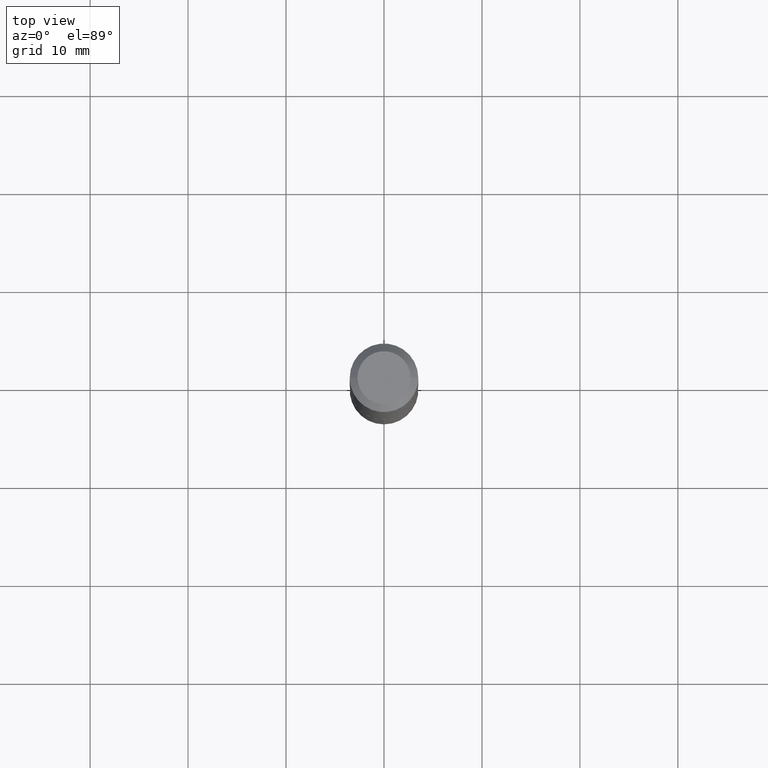
[diagram: clean part render]
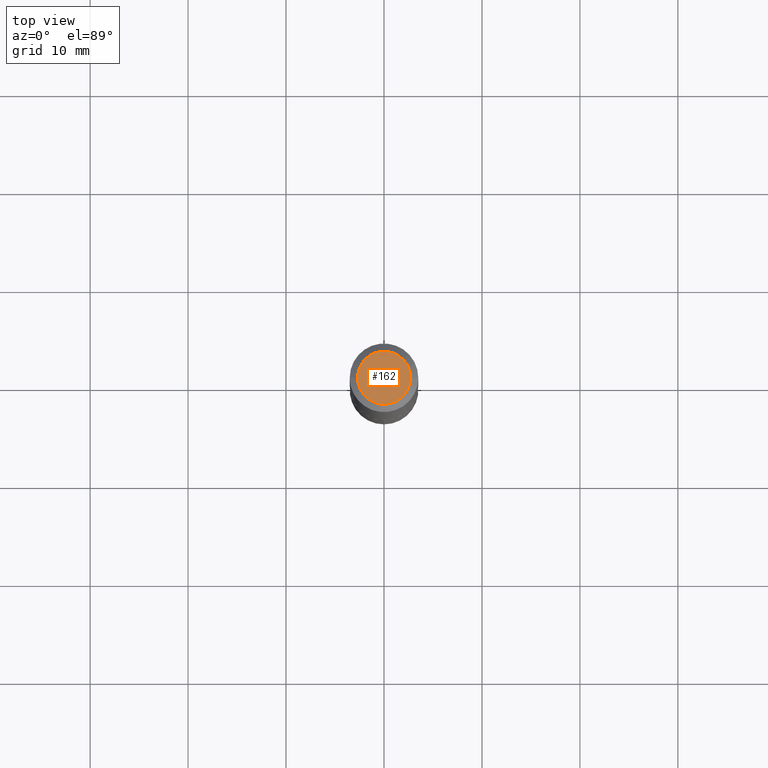
[diagram: same view with one face highlighted and labeled with its STEP entity id]
A machine part, top view. The second image highlights one B-rep face of the part: STEP entity #162.
In plain terms, the highlighted planar face has unit normal (0, -0, -1).
Its self-contained STEP definition (entity closure, byte-faithful):
#27 = FACE_OUTER_BOUND ( 'NONE', #73, .T. ) ;
#50 = DIRECTION ( 'NONE',  ( -1.000000000000000000, 6.982962677686265922E-15, -4.876176775795935793E-29 ) ) ;
#73 = EDGE_LOOP ( 'NONE', ( #261, #152 ) ) ;
#114 = CARTESIAN_POINT ( 'NONE',  ( -0.1065500000000000197, 7.985890692268953051E-16, 1.206277097154747981E-18 ) ) ;
#119 = DIRECTION ( 'NONE',  ( -2.445468806185136597E-29, 3.491481338843145583E-15, 1.000000000000000000 ) ) ;
#133 = CARTESIAN_POINT ( 'NONE',  ( -2.949913012720684502E-47, 4.211693974208516178E-33, 1.206277097160141933E-18 ) ) ;
#152 = ORIENTED_EDGE ( 'NONE', *, *, #175, .T. ) ;
#162 = ADVANCED_FACE ( 'NONE', ( #27 ), #255, .F. ) ;
#175 = EDGE_CURVE ( 'NONE', #231, #222, #316, .T. ) ;
#180 = AXIS2_PLACEMENT_3D ( 'NONE', #133, #230, #353 ) ;
#205 = CARTESIAN_POINT ( 'NONE',  ( -2.949913012720684502E-47, 4.211693974208516178E-33, 1.206277097160141933E-18 ) ) ;
#210 = DIRECTION ( 'NONE',  ( 1.000000000000000000, -6.982962677686266711E-15, 4.876211711926274224E-29 ) ) ;
#222 = VERTEX_POINT ( 'NONE', #114 ) ;
#230 = DIRECTION ( 'NONE',  ( -2.445468806185136597E-29, 3.491481338843145583E-15, 1.000000000000000000 ) ) ;
#231 = VERTEX_POINT ( 'NONE', #236 ) ;
#236 = CARTESIAN_POINT ( 'NONE',  ( 0.1065500000000000197, -8.927357387971616206E-16, 1.206277097165864641E-18 ) ) ;
#241 = CIRCLE ( 'NONE', #384, 0.1065500000000000197 ) ;
#255 = PLANE ( 'NONE',  #333 ) ;
#260 = EDGE_CURVE ( 'NONE', #222, #231, #241, .T. ) ;
#261 = ORIENTED_EDGE ( 'NONE', *, *, #260, .T. ) ;
#316 = CIRCLE ( 'NONE', #180, 0.1065500000000000197 ) ;
#333 = AXIS2_PLACEMENT_3D ( 'NONE', #357, #388, #50 ) ;
#353 = DIRECTION ( 'NONE',  ( 1.000000000000000000, -6.982962677686266711E-15, 4.876211711926274224E-29 ) ) ;
#357 = CARTESIAN_POINT ( 'NONE',  ( -1.474956506360342251E-47, 2.105846987104258089E-33, 6.031385485800709664E-19 ) ) ;
#384 = AXIS2_PLACEMENT_3D ( 'NONE', #205, #119, #210 ) ;
#388 = DIRECTION ( 'NONE',  ( 2.438088387897960049E-29, -3.491481338843145188E-15, -1.000000000000000000 ) ) ;